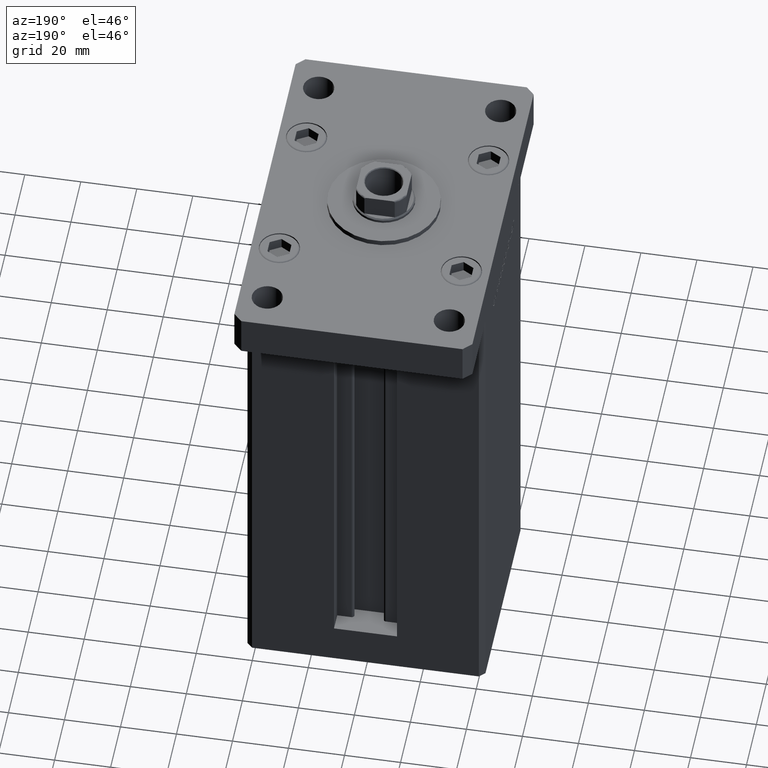
[diagram: clean part render]
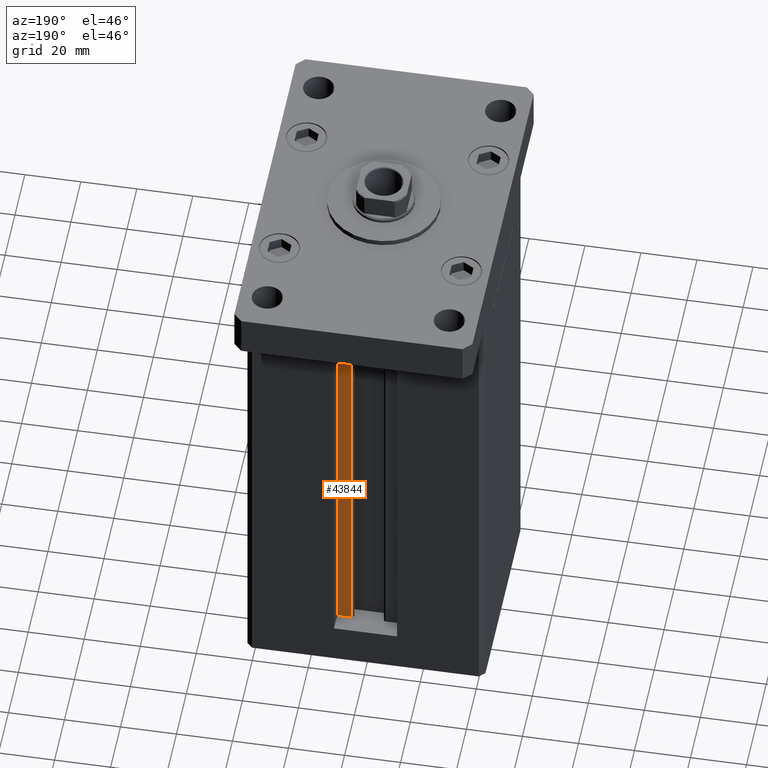
[diagram: same view with one face highlighted and labeled with its STEP entity id]
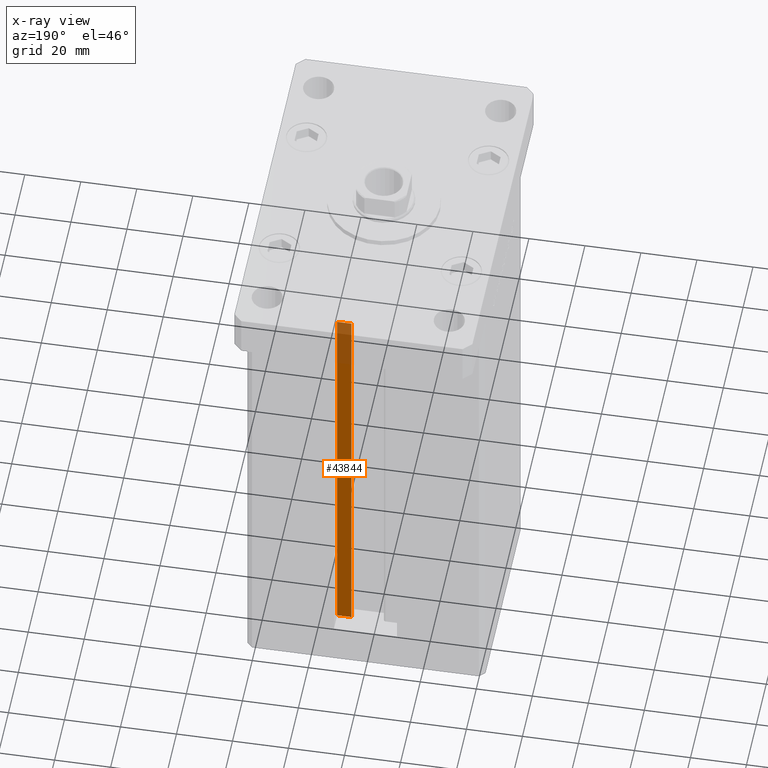
[diagram: x-ray of the same camera — body ghosted, the highlighted face saturated]
A machine part, auxiliary view. The second image highlights one B-rep face of the part: STEP entity #43844.
The next image is the same camera in x-ray: the body ghosted, the highlighted face saturated — about 14% of this face is hidden behind the body in this view.
In plain terms, the highlighted planar face has unit normal (0, -1, 0).
Its self-contained STEP definition (entity closure, byte-faithful):
#1763 = CARTESIAN_POINT ( 'NONE',  ( 0.000000000000000000, 30.99999999999999289, 148.5000000000000000 ) ) ;
#2101 = CARTESIAN_POINT ( 'NONE',  ( 6.183333333333999704, 30.99999999999999289, 0.000000000000000000 ) ) ;
#3192 = CARTESIAN_POINT ( 'NONE',  ( 6.183333333333999704, 30.99999999999999289, 148.5000000000000000 ) ) ;
#3527 = VERTEX_POINT ( 'NONE', #3192 ) ;
#4016 = VERTEX_POINT ( 'NONE', #19276 ) ;
#4764 = ORIENTED_EDGE ( 'NONE', *, *, #9777, .F. ) ;
#5327 = CARTESIAN_POINT ( 'NONE',  ( 6.183333333333999704, 30.99999999999999289, 0.000000000000000000 ) ) ;
#9777 = EDGE_CURVE ( 'NONE', #49223, #15145, #13715, .T. ) ;
#11622 = ORIENTED_EDGE ( 'NONE', *, *, #51471, .F. ) ;
#13715 = LINE ( 'NONE', #5327, #15874 ) ;
#15145 = VERTEX_POINT ( 'NONE', #28867 ) ;
#15874 = VECTOR ( 'NONE', #21854, 1000.000000000000000 ) ;
#17781 = CARTESIAN_POINT ( 'NONE',  ( 11.25000000000000000, 30.99999999999999289, 0.000000000000000000 ) ) ;
#17944 = CARTESIAN_POINT ( 'NONE',  ( 6.183333333333999704, 30.99999999999999289, 0.000000000000000000 ) ) ;
#19174 = AXIS2_PLACEMENT_3D ( 'NONE', #2101, #35434, #35706 ) ;
#19276 = CARTESIAN_POINT ( 'NONE',  ( 11.25000000000000000, 30.99999999999999289, 148.5000000000000000 ) ) ;
#21600 = DIRECTION ( 'NONE',  ( -0.000000000000000000, -0.000000000000000000, 1.000000000000000000 ) ) ;
#21854 = DIRECTION ( 'NONE',  ( 1.000000000000000000, 0.000000000000000000, 0.000000000000000000 ) ) ;
#24649 = ORIENTED_EDGE ( 'NONE', *, *, #40734, .T. ) ;
#26743 = PLANE ( 'NONE',  #19174 ) ;
#26903 = VECTOR ( 'NONE', #46743, 1000.000000000000000 ) ;
#28867 = CARTESIAN_POINT ( 'NONE',  ( 11.25000000000000000, 30.99999999999999289, 0.000000000000000000 ) ) ;
#32523 = CARTESIAN_POINT ( 'NONE',  ( 6.183333333333999704, 30.99999999999999289, 0.000000000000000000 ) ) ;
#34830 = DIRECTION ( 'NONE',  ( -1.000000000000000000, 0.000000000000000000, 0.000000000000000000 ) ) ;
#35165 = FACE_OUTER_BOUND ( 'NONE', #53355, .T. ) ;
#35351 = VECTOR ( 'NONE', #34830, 1000.000000000000000 ) ;
#35434 = DIRECTION ( 'NONE',  ( 0.000000000000000000, -1.000000000000000000, 0.000000000000000000 ) ) ;
#35706 = DIRECTION ( 'NONE',  ( 0.000000000000000000, -0.000000000000000000, -1.000000000000000000 ) ) ;
#37082 = VECTOR ( 'NONE', #21600, 1000.000000000000000 ) ;
#40684 = ORIENTED_EDGE ( 'NONE', *, *, #51754, .F. ) ;
#40734 = EDGE_CURVE ( 'NONE', #49223, #3527, #42411, .T. ) ;
#42411 = LINE ( 'NONE', #17944, #26903 ) ;
#42976 = LINE ( 'NONE', #1763, #35351 ) ;
#43307 = LINE ( 'NONE', #17781, #37082 ) ;
#43844 = ADVANCED_FACE ( 'NONE', ( #35165 ), #26743, .F. ) ;
#46743 = DIRECTION ( 'NONE',  ( -0.000000000000000000, -0.000000000000000000, 1.000000000000000000 ) ) ;
#49223 = VERTEX_POINT ( 'NONE', #32523 ) ;
#51471 = EDGE_CURVE ( 'NONE', #15145, #4016, #43307, .T. ) ;
#51754 = EDGE_CURVE ( 'NONE', #4016, #3527, #42976, .T. ) ;
#53355 = EDGE_LOOP ( 'NONE', ( #11622, #4764, #24649, #40684 ) ) ;